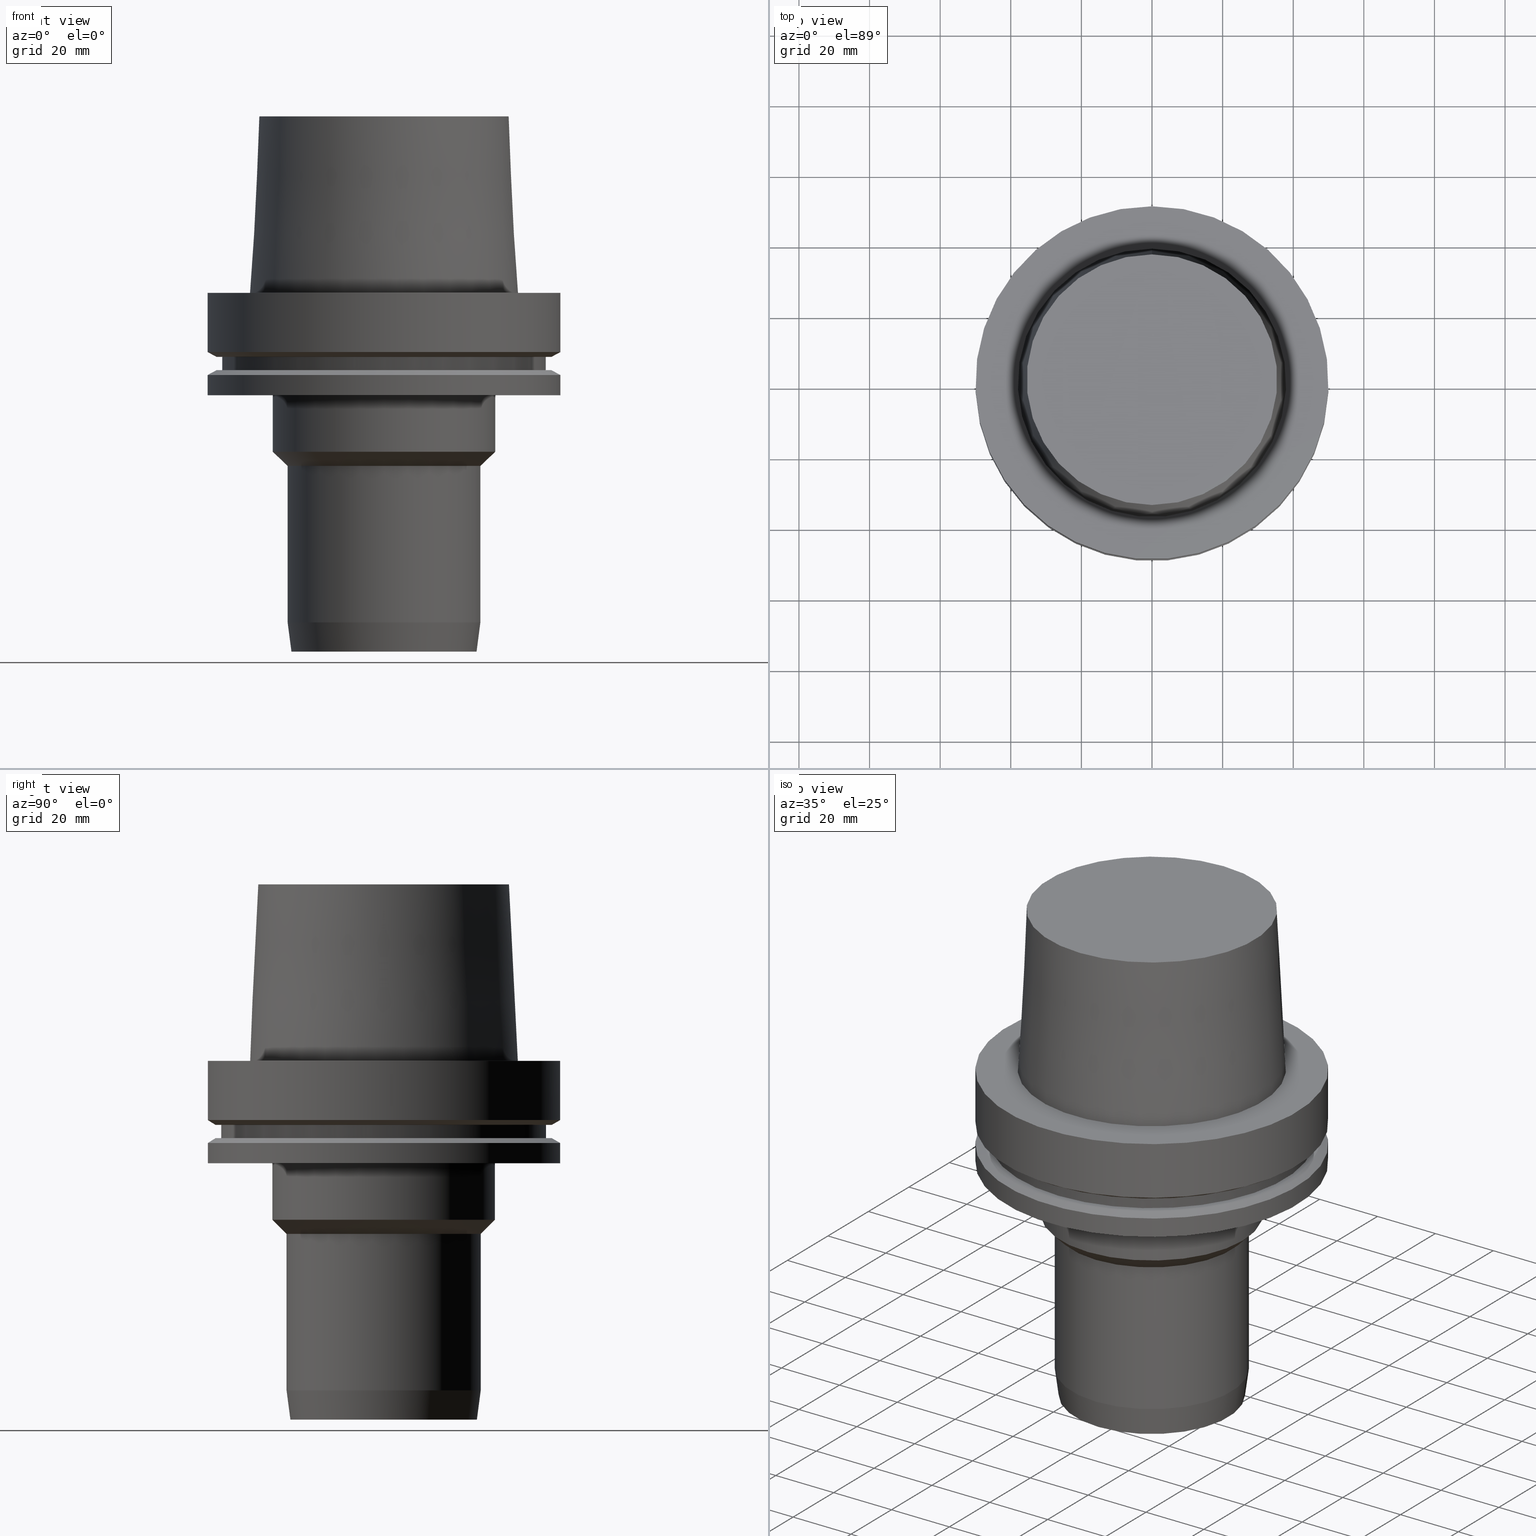
[diagram: canonical four-view strip — front | top / right | iso, engineering-drawing reading convention]
A machine part, canonical four-view strip (front | top / right | iso — engineering-drawing reading convention). The complete STEP part file that produces these views, byte-faithful:
ISO-10303-21;
HEADER;
FILE_DESCRIPTION((''),'1');
FILE_NAME('V:/90_\X2\53D65F9730C730FC30BF\X0\/00_\X2\6DE18DEF30C730FC30BF\X0\/ALL/HSK-BKUS\X2\52A05DE556F3\X0\_201801/HSK-A100-HDC/HSK-A100-HDC1.000-4.stp','2018-02-01T05:33:24',(''),(''),'Spatial Interop R21 SP3','Kubotek KeyCreator 2011 V10.0.2 (22737)',' ');
FILE_SCHEMA(('automotive_design'));
ENDSEC;
DATA;
#1=MECHANICAL_DESIGN_GEOMETRIC_PRESENTATION_REPRESENTATION(' ',(#10,#11,#12,#13,#14,#15,#16,#17,#18,#19,#20,#21,#22,#23,#24,#25,#26,#27,#28,#29,#30,#31,#32,#33,#34,#35,#36,#37,#38,#39,#40,#41),#6);
#2=PRODUCT_DEFINITION_CONTEXT('',#42,'design');
#3=APPLICATION_PROTOCOL_DEFINITION('INTERNATIONAL STANDARD','automotive_design',1994,#42);
#4=PRODUCT_CATEGORY_RELATIONSHIP('NONE','NONE',#43,#44);
#5=SHAPE_DEFINITION_REPRESENTATION(#45,#46);
#6= (GEOMETRIC_REPRESENTATION_CONTEXT(3)GLOBAL_UNCERTAINTY_ASSIGNED_CONTEXT((#49))GLOBAL_UNIT_ASSIGNED_CONTEXT((#51,#52,#53))REPRESENTATION_CONTEXT('NONE','WORKSPACE'));
#10=STYLED_ITEM('',(#55,#56),#57);
#11=STYLED_ITEM('',(#58),#59);
#12=STYLED_ITEM('',(#60,#61),#62);
#13=STYLED_ITEM('',(#63),#64);
#14=STYLED_ITEM('',(#65,#66),#67);
#15=STYLED_ITEM('',(#68,#69),#70);
#16=STYLED_ITEM('',(#71,#72),#73);
#17=STYLED_ITEM('',(#74),#75);
#18=STYLED_ITEM('',(#76,#77),#78);
#19=STYLED_ITEM('',(#79,#80),#81);
#20=STYLED_ITEM('',(#82),#83);
#21=STYLED_ITEM('',(#84),#85);
#22=STYLED_ITEM('',(#86,#87),#88);
#23=STYLED_ITEM('',(#89),#90);
#24=STYLED_ITEM('',(#91,#92),#93);
#25=STYLED_ITEM('',(#94),#95);
#26=STYLED_ITEM('',(#96),#97);
#27=STYLED_ITEM('',(#98,#99),#100);
#28=STYLED_ITEM('',(#101),#102);
#29=STYLED_ITEM('',(#103,#104),#105);
#30=STYLED_ITEM('',(#106,#107),#108);
#31=STYLED_ITEM('',(#109),#110);
#32=STYLED_ITEM('',(#111,#112),#113);
#33=STYLED_ITEM('',(#114,#115),#116);
#34=STYLED_ITEM('',(#117),#118);
#35=STYLED_ITEM('',(#119,#120),#121);
#36=STYLED_ITEM('',(#122),#123);
#37=STYLED_ITEM('',(#124,#125),#126);
#38=STYLED_ITEM('',(#127),#128);
#39=STYLED_ITEM('',(#129),#130);
#40=STYLED_ITEM('',(#131),#132);
#41=STYLED_ITEM('',(#133,#134),#135);
#42=APPLICATION_CONTEXT(' ');
#43=PRODUCT_CATEGORY('part','NONE');
#44=PRODUCT_RELATED_PRODUCT_CATEGORY('detail',' ',(#136));
#45=PRODUCT_DEFINITION_SHAPE('NONE','NONE',#137);
#46=ADVANCED_BREP_SHAPE_REPRESENTATION('Unnamed[1]',(#135,#138),#6);
#49=UNCERTAINTY_MEASURE_WITH_UNIT(LENGTH_MEASURE(1.0E-006),#51,'','');
#51= (CONVERSION_BASED_UNIT('MILLIMETRE',#141)LENGTH_UNIT()NAMED_UNIT(#144));
#52= (NAMED_UNIT(#146)PLANE_ANGLE_UNIT()SI_UNIT($,.RADIAN.));
#53= (NAMED_UNIT(#146)SOLID_ANGLE_UNIT()SI_UNIT($,.STERADIAN.));
#55=PRESENTATION_STYLE_ASSIGNMENT((#152));
#56=PRESENTATION_STYLE_ASSIGNMENT((#153));
#57=ADVANCED_FACE('Unnamed[1]',(#154,#155),#156,.T.);
#58=PRESENTATION_STYLE_ASSIGNMENT((#157));
#59=EDGE_CURVE('Unnamed[1]',#158,#158,#159,.T.);
#60=PRESENTATION_STYLE_ASSIGNMENT((#160));
#61=PRESENTATION_STYLE_ASSIGNMENT((#161));
#62=ADVANCED_FACE('Unnamed[1]',(#162),#163,.T.);
#63=PRESENTATION_STYLE_ASSIGNMENT((#164));
#64=EDGE_CURVE('Unnamed[1]',#165,#165,#166,.T.);
#65=PRESENTATION_STYLE_ASSIGNMENT((#167));
#66=PRESENTATION_STYLE_ASSIGNMENT((#168));
#67=ADVANCED_FACE('Unnamed[1]',(#169,#170),#171,.T.);
#68=PRESENTATION_STYLE_ASSIGNMENT((#172));
#69=PRESENTATION_STYLE_ASSIGNMENT((#173));
#70=ADVANCED_FACE('Unnamed[1]',(#174),#175,.T.);
#71=PRESENTATION_STYLE_ASSIGNMENT((#176));
#72=PRESENTATION_STYLE_ASSIGNMENT((#177));
#73=ADVANCED_FACE('Unnamed[1]',(#178,#179),#180,.T.);
#74=PRESENTATION_STYLE_ASSIGNMENT((#181));
#75=EDGE_CURVE('Unnamed[1]',#182,#182,#183,.T.);
#76=PRESENTATION_STYLE_ASSIGNMENT((#184));
#77=PRESENTATION_STYLE_ASSIGNMENT((#185));
#78=ADVANCED_FACE('Unnamed[1]',(#186,#187),#188,.T.);
#79=PRESENTATION_STYLE_ASSIGNMENT((#189));
#80=PRESENTATION_STYLE_ASSIGNMENT((#190));
#81=ADVANCED_FACE('Unnamed[1]',(#191,#192),#193,.T.);
#82=PRESENTATION_STYLE_ASSIGNMENT((#194));
#83=EDGE_CURVE('Unnamed[1]',#195,#195,#196,.T.);
#84=PRESENTATION_STYLE_ASSIGNMENT((#197));
#85=EDGE_CURVE('Unnamed[1]',#198,#198,#199,.T.);
#86=PRESENTATION_STYLE_ASSIGNMENT((#200));
#87=PRESENTATION_STYLE_ASSIGNMENT((#201));
#88=ADVANCED_FACE('Unnamed[1]',(#202,#203),#204,.T.);
#89=PRESENTATION_STYLE_ASSIGNMENT((#205));
#90=EDGE_CURVE('Unnamed[1]',#206,#206,#207,.T.);
#91=PRESENTATION_STYLE_ASSIGNMENT((#208));
#92=PRESENTATION_STYLE_ASSIGNMENT((#209));
#93=ADVANCED_FACE('Unnamed[1]',(#210,#211),#212,.T.);
#94=PRESENTATION_STYLE_ASSIGNMENT((#213));
#95=EDGE_CURVE('Unnamed[1]',#214,#214,#215,.T.);
#96=PRESENTATION_STYLE_ASSIGNMENT((#216));
#97=EDGE_CURVE('Unnamed[1]',#217,#217,#218,.T.);
#98=PRESENTATION_STYLE_ASSIGNMENT((#219));
#99=PRESENTATION_STYLE_ASSIGNMENT((#220));
#100=ADVANCED_FACE('Unnamed[1]',(#221,#222),#223,.T.);
#101=PRESENTATION_STYLE_ASSIGNMENT((#224));
#102=EDGE_CURVE('Unnamed[1]',#225,#225,#226,.T.);
#103=PRESENTATION_STYLE_ASSIGNMENT((#227));
#104=PRESENTATION_STYLE_ASSIGNMENT((#228));
#105=ADVANCED_FACE('Unnamed[1]',(#229,#230),#231,.T.);
#106=PRESENTATION_STYLE_ASSIGNMENT((#232));
#107=PRESENTATION_STYLE_ASSIGNMENT((#233));
#108=ADVANCED_FACE('Unnamed[1]',(#234,#235),#236,.T.);
#109=PRESENTATION_STYLE_ASSIGNMENT((#237));
#110=EDGE_CURVE('Unnamed[1]',#238,#238,#239,.T.);
#111=PRESENTATION_STYLE_ASSIGNMENT((#240));
#112=PRESENTATION_STYLE_ASSIGNMENT((#241));
#113=ADVANCED_FACE('Unnamed[1]',(#242,#243),#244,.T.);
#114=PRESENTATION_STYLE_ASSIGNMENT((#245));
#115=PRESENTATION_STYLE_ASSIGNMENT((#246));
#116=ADVANCED_FACE('Unnamed[1]',(#247,#248),#249,.T.);
#117=PRESENTATION_STYLE_ASSIGNMENT((#250));
#118=EDGE_CURVE('Unnamed[1]',#251,#251,#252,.T.);
#119=PRESENTATION_STYLE_ASSIGNMENT((#253));
#120=PRESENTATION_STYLE_ASSIGNMENT((#254));
#121=ADVANCED_FACE('Unnamed[1]',(#255,#256),#257,.T.);
#122=PRESENTATION_STYLE_ASSIGNMENT((#258));
#123=EDGE_CURVE('Unnamed[1]',#259,#259,#260,.T.);
#124=PRESENTATION_STYLE_ASSIGNMENT((#261));
#125=PRESENTATION_STYLE_ASSIGNMENT((#262));
#126=ADVANCED_FACE('Unnamed[1]',(#263,#264),#265,.T.);
#127=PRESENTATION_STYLE_ASSIGNMENT((#266));
#128=EDGE_CURVE('Unnamed[1]',#267,#267,#268,.T.);
#129=PRESENTATION_STYLE_ASSIGNMENT((#269));
#130=EDGE_CURVE('Unnamed[1]',#270,#270,#271,.T.);
#131=PRESENTATION_STYLE_ASSIGNMENT((#272));
#132=EDGE_CURVE('Unnamed[1]',#273,#273,#274,.T.);
#133=PRESENTATION_STYLE_ASSIGNMENT((#275));
#134=PRESENTATION_STYLE_ASSIGNMENT((#276));
#135=MANIFOLD_SOLID_BREP('Unnamed[1]',#277);
#136=PRODUCT('Unnamed[1]','Unnamed[1]','PART-Unnamed[1]-DESC',(#278));
#137=PRODUCT_DEFINITION('NONE','NONE',#279,#2);
#138=AXIS2_PLACEMENT_3D('',#280,#281,#282);
#141=LENGTH_MEASURE_WITH_UNIT(LENGTH_MEASURE(1.0),#283);
#144=DIMENSIONAL_EXPONENTS(1.0,0.0,0.0,0.0,0.0,0.0,0.0);
#146=DIMENSIONAL_EXPONENTS(0.0,0.0,0.0,0.0,0.0,0.0,0.0);
#152=SURFACE_STYLE_USAGE(.BOTH.,#284);
#153=CURVE_STYLE('',#285,POSITIVE_LENGTH_MEASURE(1000.0),#286);
#154=FACE_BOUND('',#287,.T.);
#155=FACE_BOUND('',#288,.T.);
#156=CONICAL_SURFACE('',#289,26.9542845478111,0.130899693899458);
#157=CURVE_STYLE('',#290,POSITIVE_LENGTH_MEASURE(1000.0),#291);
#158=VERTEX_POINT('',#292);
#159=CIRCLE('',#293,47.62259526);
#160=SURFACE_STYLE_USAGE(.BOTH.,#294);
#161=CURVE_STYLE('',#295,POSITIVE_LENGTH_MEASURE(1000.0),#296);
#162=FACE_OUTER_BOUND('',#297,.T.);
#163=PLANE('',#298);
#164=CURVE_STYLE('',#299,POSITIVE_LENGTH_MEASURE(1000.0),#300);
#165=VERTEX_POINT('',#301);
#166=CIRCLE('',#302,31.5000000000006);
#167=SURFACE_STYLE_USAGE(.BOTH.,#303);
#168=CURVE_STYLE('',#304,POSITIVE_LENGTH_MEASURE(1000.0),#305);
#169=FACE_BOUND('',#306,.T.);
#170=FACE_OUTER_BOUND('',#307,.T.);
#171=PLANE('',#308);
#172=SURFACE_STYLE_USAGE(.BOTH.,#309);
#173=CURVE_STYLE('',#310,POSITIVE_LENGTH_MEASURE(1000.0),#311);
#174=FACE_OUTER_BOUND('',#312,.T.);
#175=PLANE('',#313);
#176=SURFACE_STYLE_USAGE(.BOTH.,#314);
#177=CURVE_STYLE('',#315,POSITIVE_LENGTH_MEASURE(1000.0),#316);
#178=FACE_BOUND('',#317,.T.);
#179=FACE_BOUND('',#318,.T.);
#180=CONICAL_SURFACE('',#319,48.81129763,1.04719755328238);
#181=CURVE_STYLE('',#320,POSITIVE_LENGTH_MEASURE(1000.0),#321);
#182=VERTEX_POINT('',#322);
#183=CIRCLE('',#323,46.0);
#184=SURFACE_STYLE_USAGE(.BOTH.,#324);
#185=CURVE_STYLE('',#325,POSITIVE_LENGTH_MEASURE(1000.0),#326);
#186=FACE_BOUND('',#327,.T.);
#187=FACE_OUTER_BOUND('',#328,.T.);
#188=PLANE('',#329);
#189=SURFACE_STYLE_USAGE(.BOTH.,#330);
#190=CURVE_STYLE('',#331,POSITIVE_LENGTH_MEASURE(1000.0),#332);
#191=FACE_BOUND('',#333,.T.);
#192=FACE_BOUND('',#334,.T.);
#193=CYLINDRICAL_SURFACE('',#335,31.5000000000003);
#194=CURVE_STYLE('',#336,POSITIVE_LENGTH_MEASURE(1000.0),#337);
#195=VERTEX_POINT('',#338);
#196=CIRCLE('',#339,27.5000000000022);
#197=CURVE_STYLE('',#340,POSITIVE_LENGTH_MEASURE(1000.0),#341);
#198=VERTEX_POINT('',#342);
#199=CIRCLE('',#343,46.0);
#200=SURFACE_STYLE_USAGE(.BOTH.,#344);
#201=CURVE_STYLE('',#345,POSITIVE_LENGTH_MEASURE(1000.0),#346);
#202=FACE_BOUND('',#347,.T.);
#203=FACE_BOUND('',#348,.T.);
#204=CYLINDRICAL_SURFACE('',#349,27.5000000000019);
#205=CURVE_STYLE('',#350,POSITIVE_LENGTH_MEASURE(1000.0),#351);
#206=VERTEX_POINT('',#352);
#207=CIRCLE('',#353,37.9999999999349);
#208=SURFACE_STYLE_USAGE(.BOTH.,#354);
#209=CURVE_STYLE('',#355,POSITIVE_LENGTH_MEASURE(1000.0),#356);
#210=FACE_OUTER_BOUND('',#357,.T.);
#211=FACE_BOUND('',#358,.T.);
#212=PLANE('',#359);
#213=CURVE_STYLE('',#360,POSITIVE_LENGTH_MEASURE(1000.0),#361);
#214=VERTEX_POINT('',#362);
#215=CIRCLE('',#363,50.0);
#216=CURVE_STYLE('',#364,POSITIVE_LENGTH_MEASURE(1000.0),#365);
#217=VERTEX_POINT('',#366);
#218=CIRCLE('',#367,31.5);
#219=SURFACE_STYLE_USAGE(.BOTH.,#368);
#220=CURVE_STYLE('',#369,POSITIVE_LENGTH_MEASURE(1000.0),#370);
#221=FACE_BOUND('',#371,.T.);
#222=FACE_BOUND('',#372,.T.);
#223=CYLINDRICAL_SURFACE('',#373,50.0);
#224=CURVE_STYLE('',#374,POSITIVE_LENGTH_MEASURE(1000.0),#375);
#225=VERTEX_POINT('',#376);
#226=CIRCLE('',#377,27.5000000000016);
#227=SURFACE_STYLE_USAGE(.BOTH.,#378);
#228=CURVE_STYLE('',#379,POSITIVE_LENGTH_MEASURE(1000.0),#380);
#229=FACE_BOUND('',#381,.T.);
#230=FACE_BOUND('',#382,.T.);
#231=CONICAL_SURFACE('',#383,36.7500000007484,0.0499583956894843);
#232=SURFACE_STYLE_USAGE(.BOTH.,#384);
#233=CURVE_STYLE('',#385,POSITIVE_LENGTH_MEASURE(1000.0),#386);
#234=FACE_BOUND('',#387,.T.);
#235=FACE_BOUND('',#388,.T.);
#236=CONICAL_SURFACE('',#389,29.5000000000011,0.785398163397319);
#237=CURVE_STYLE('',#390,POSITIVE_LENGTH_MEASURE(1000.0),#391);
#238=VERTEX_POINT('',#392);
#239=CIRCLE('',#393,35.5000000015618);
#240=SURFACE_STYLE_USAGE(.BOTH.,#394);
#241=CURVE_STYLE('',#395,POSITIVE_LENGTH_MEASURE(1000.0),#396);
#242=FACE_BOUND('',#397,.T.);
#243=FACE_BOUND('',#398,.T.);
#244=CYLINDRICAL_SURFACE('',#399,50.0);
#245=SURFACE_STYLE_USAGE(.BOTH.,#400);
#246=CURVE_STYLE('',#401,POSITIVE_LENGTH_MEASURE(1000.0),#402);
#247=FACE_BOUND('',#403,.T.);
#248=FACE_BOUND('',#404,.T.);
#249=CONICAL_SURFACE('',#405,48.81129763,1.04719755328238);
#250=CURVE_STYLE('',#406,POSITIVE_LENGTH_MEASURE(1000.0),#407);
#251=VERTEX_POINT('',#408);
#252=CIRCLE('',#409,50.0);
#253=SURFACE_STYLE_USAGE(.BOTH.,#410);
#254=CURVE_STYLE('',#411,POSITIVE_LENGTH_MEASURE(1000.0),#412);
#255=FACE_OUTER_BOUND('',#413,.T.);
#256=FACE_BOUND('',#414,.T.);
#257=PLANE('',#415);
#258=CURVE_STYLE('',#416,POSITIVE_LENGTH_MEASURE(1000.0),#417);
#259=VERTEX_POINT('',#418);
#260=CIRCLE('',#419,50.0);
#261=SURFACE_STYLE_USAGE(.BOTH.,#420);
#262=CURVE_STYLE('',#421,POSITIVE_LENGTH_MEASURE(1000.0),#422);
#263=FACE_BOUND('',#423,.T.);
#264=FACE_BOUND('',#424,.T.);
#265=CYLINDRICAL_SURFACE('',#425,46.0);
#266=CURVE_STYLE('',#426,POSITIVE_LENGTH_MEASURE(1000.0),#427);
#267=VERTEX_POINT('',#428);
#268=CIRCLE('',#429,47.62259526);
#269=CURVE_STYLE('',#430,POSITIVE_LENGTH_MEASURE(1000.0),#431);
#270=VERTEX_POINT('',#432);
#271=CIRCLE('',#433,50.0);
#272=CURVE_STYLE('',#434,POSITIVE_LENGTH_MEASURE(1000.0),#435);
#273=VERTEX_POINT('',#436);
#274=CIRCLE('',#437,26.4085690956199);
#275=SURFACE_STYLE_USAGE(.BOTH.,#438);
#276=CURVE_STYLE('',#439,POSITIVE_LENGTH_MEASURE(1000.0),#440);
#277=CLOSED_SHELL('',(#62,#105,#93,#100,#116,#67,#126,#121,#73,#113,#78,#81,#108,#88,#57,#70));
#278=PRODUCT_CONTEXT('',#42,'mechanical');
#279=PRODUCT_DEFINITION_FORMATION_WITH_SPECIFIED_SOURCE(' ','NONE',#136,.NOT_KNOWN.);
#280=CARTESIAN_POINT('',(0.0,0.0,0.0));
#281=DIRECTION('',(0.0,0.0,1.0));
#282=DIRECTION('',(1.0,0.0,0.0));
#283= (NAMED_UNIT(#144)LENGTH_UNIT()SI_UNIT(.MILLI.,.METRE.));
#284=SURFACE_SIDE_STYLE('',(#442));
#285=DRAUGHTING_PRE_DEFINED_CURVE_FONT('continuous');
#286=COLOUR_RGB('',0.0,1.0,0.0);
#287=EDGE_LOOP('',(#443));
#288=EDGE_LOOP('',(#444));
#289=AXIS2_PLACEMENT_3D('',#445,#446,#447);
#290=DRAUGHTING_PRE_DEFINED_CURVE_FONT('continuous');
#291=COLOUR_RGB('',0.0,1.0,0.0);
#292=CARTESIAN_POINT('',(1.33945743656742E-015,47.62259526,-21.875));
#293=AXIS2_PLACEMENT_3D('',#448,#449,#450);
#294=SURFACE_SIDE_STYLE('',(#451));
#295=DRAUGHTING_PRE_DEFINED_CURVE_FONT('continuous');
#296=COLOUR_RGB('',0.0,1.0,0.0);
#297=EDGE_LOOP('',(#452));
#298=AXIS2_PLACEMENT_3D('',#453,#454,#455);
#299=DRAUGHTING_PRE_DEFINED_CURVE_FONT('continuous');
#300=COLOUR_RGB('',0.0,1.0,0.0);
#301=CARTESIAN_POINT('',(2.75545529808154E-015,31.5000000000006,-45.0));
#302=AXIS2_PLACEMENT_3D('',#456,#457,#458);
#303=SURFACE_SIDE_STYLE('',(#459));
#304=DRAUGHTING_PRE_DEFINED_CURVE_FONT('continuous');
#305=COLOUR_RGB('',0.0,1.0,0.0);
#306=EDGE_LOOP('',(#460));
#307=EDGE_LOOP('',(#461));
#308=AXIS2_PLACEMENT_3D('',#462,#463,#464);
#309=SURFACE_SIDE_STYLE('',(#465));
#310=DRAUGHTING_PRE_DEFINED_CURVE_FONT('continuous');
#311=COLOUR_RGB('',0.0,1.0,0.0);
#312=EDGE_LOOP('',(#466));
#313=AXIS2_PLACEMENT_3D('',#467,#468,#469);
#314=SURFACE_SIDE_STYLE('',(#470));
#315=DRAUGHTING_PRE_DEFINED_CURVE_FONT('continuous');
#316=COLOUR_RGB('',0.0,1.0,0.0);
#317=EDGE_LOOP('',(#471));
#318=EDGE_LOOP('',(#472));
#319=AXIS2_PLACEMENT_3D('',#473,#474,#475);
#320=DRAUGHTING_PRE_DEFINED_CURVE_FONT('continuous');
#321=COLOUR_RGB('',0.0,1.0,0.0);
#322=CARTESIAN_POINT('',(1.10983616172729E-015,46.0,-18.125));
#323=AXIS2_PLACEMENT_3D('',#476,#477,#478);
#324=SURFACE_SIDE_STYLE('',(#479));
#325=DRAUGHTING_PRE_DEFINED_CURVE_FONT('continuous');
#326=COLOUR_RGB('',0.0,1.0,0.0);
#327=EDGE_LOOP('',(#480));
#328=EDGE_LOOP('',(#481));
#329=AXIS2_PLACEMENT_3D('',#482,#483,#484);
#330=SURFACE_SIDE_STYLE('',(#485));
#331=DRAUGHTING_PRE_DEFINED_CURVE_FONT('continuous');
#332=COLOUR_RGB('',0.0,1.0,0.0);
#333=EDGE_LOOP('',(#486));
#334=EDGE_LOOP('',(#487));
#335=AXIS2_PLACEMENT_3D('',#488,#489,#490);
#336=DRAUGHTING_PRE_DEFINED_CURVE_FONT('continuous');
#337=COLOUR_RGB('',0.0,1.0,0.0);
#338=CARTESIAN_POINT('',(5.7135748978548E-015,27.5000000000022,-93.3097592192755));
#339=AXIS2_PLACEMENT_3D('',#491,#492,#493);
#340=DRAUGHTING_PRE_DEFINED_CURVE_FONT('continuous');
#341=COLOUR_RGB('',0.0,1.0,0.0);
#342=CARTESIAN_POINT('',(1.33945743656742E-015,46.0,-21.875));
#343=AXIS2_PLACEMENT_3D('',#494,#495,#496);
#344=SURFACE_SIDE_STYLE('',(#497));
#345=DRAUGHTING_PRE_DEFINED_CURVE_FONT('continuous');
#346=COLOUR_RGB('',0.0,1.0,0.0);
#347=EDGE_LOOP('',(#498));
#348=EDGE_LOOP('',(#499));
#349=AXIS2_PLACEMENT_3D('',#500,#501,#502);
#350=DRAUGHTING_PRE_DEFINED_CURVE_FONT('continuous');
#351=COLOUR_RGB('',0.0,1.0,0.0);
#352=CARTESIAN_POINT('',(-3.3636548776863E-032,37.9999999999349,-2.44634216324803E-015));
#353=AXIS2_PLACEMENT_3D('',#503,#504,#505);
#354=SURFACE_SIDE_STYLE('',(#506));
#355=DRAUGHTING_PRE_DEFINED_CURVE_FONT('continuous');
#356=COLOUR_RGB('',0.0,1.0,0.0);
#357=EDGE_LOOP('',(#507));
#358=EDGE_LOOP('',(#508));
#359=AXIS2_PLACEMENT_3D('',#509,#510,#511);
#360=DRAUGHTING_PRE_DEFINED_CURVE_FONT('continuous');
#361=COLOUR_RGB('',0.0,1.0,0.0);
#362=CARTESIAN_POINT('',(1.77573785876366E-015,50.0,-29.0));
#363=AXIS2_PLACEMENT_3D('',#512,#513,#514);
#364=DRAUGHTING_PRE_DEFINED_CURVE_FONT('continuous');
#365=COLOUR_RGB('',0.0,1.0,0.0);
#366=CARTESIAN_POINT('',(1.77573785876366E-015,31.5,-29.0));
#367=AXIS2_PLACEMENT_3D('',#515,#516,#517);
#368=SURFACE_SIDE_STYLE('',(#518));
#369=DRAUGHTING_PRE_DEFINED_CURVE_FONT('continuous');
#370=COLOUR_RGB('',0.0,1.0,0.0);
#371=EDGE_LOOP('',(#519));
#372=EDGE_LOOP('',(#520));
#373=AXIS2_PLACEMENT_3D('',#521,#522,#523);
#374=DRAUGHTING_PRE_DEFINED_CURVE_FONT('continuous');
#375=COLOUR_RGB('',0.0,1.0,0.0);
#376=CARTESIAN_POINT('',(3.00038465791101E-015,27.5000000000017,-49.0));
#377=AXIS2_PLACEMENT_3D('',#524,#525,#526);
#378=SURFACE_SIDE_STYLE('',(#527));
#379=DRAUGHTING_PRE_DEFINED_CURVE_FONT('continuous');
#380=COLOUR_RGB('',0.0,1.0,0.0);
#381=EDGE_LOOP('',(#528));
#382=EDGE_LOOP('',(#529));
#383=AXIS2_PLACEMENT_3D('',#530,#531,#532);
#384=SURFACE_SIDE_STYLE('',(#533));
#385=DRAUGHTING_PRE_DEFINED_CURVE_FONT('continuous');
#386=COLOUR_RGB('',0.0,1.0,0.0);
#387=EDGE_LOOP('',(#534));
#388=EDGE_LOOP('',(#535));
#389=AXIS2_PLACEMENT_3D('',#536,#537,#538);
#390=DRAUGHTING_PRE_DEFINED_CURVE_FONT('continuous');
#391=COLOUR_RGB('',0.0,1.0,0.0);
#392=CARTESIAN_POINT('',(-3.06161699786838E-015,35.5000000015618,50.0));
#393=AXIS2_PLACEMENT_3D('',#539,#540,#541);
#394=SURFACE_SIDE_STYLE('',(#542));
#395=DRAUGHTING_PRE_DEFINED_CURVE_FONT('continuous');
#396=COLOUR_RGB('',0.0,1.0,0.0);
#397=EDGE_LOOP('',(#543));
#398=EDGE_LOOP('',(#544));
#399=AXIS2_PLACEMENT_3D('',#545,#546,#547);
#400=SURFACE_SIDE_STYLE('',(#548));
#401=DRAUGHTING_PRE_DEFINED_CURVE_FONT('continuous');
#402=COLOUR_RGB('',0.0,1.0,0.0);
#403=EDGE_LOOP('',(#549));
#404=EDGE_LOOP('',(#550));
#405=AXIS2_PLACEMENT_3D('',#551,#552,#553);
#406=DRAUGHTING_PRE_DEFINED_CURVE_FONT('continuous');
#407=COLOUR_RGB('',0.0,1.0,0.0);
#408=CARTESIAN_POINT('',(-1.81547968506605E-031,50.0,-9.76766004263236E-016));
#409=AXIS2_PLACEMENT_3D('',#554,#555,#556);
#410=SURFACE_SIDE_STYLE('',(#557));
#411=DRAUGHTING_PRE_DEFINED_CURVE_FONT('continuous');
#412=COLOUR_RGB('',0.0,1.0,0.0);
#413=EDGE_LOOP('',(#558));
#414=EDGE_LOOP('',(#559));
#415=AXIS2_PLACEMENT_3D('',#560,#561,#562);
#416=DRAUGHTING_PRE_DEFINED_CURVE_FONT('continuous');
#417=COLOUR_RGB('',0.0,1.0,0.0);
#418=CARTESIAN_POINT('',(1.0257889421431E-015,50.0,-16.75240474));
#419=AXIS2_PLACEMENT_3D('',#563,#564,#565);
#420=SURFACE_SIDE_STYLE('',(#566));
#421=DRAUGHTING_PRE_DEFINED_CURVE_FONT('continuous');
#422=COLOUR_RGB('',0.0,1.0,0.0);
#423=EDGE_LOOP('',(#567));
#424=EDGE_LOOP('',(#568));
#425=AXIS2_PLACEMENT_3D('',#569,#570,#571);
#426=DRAUGHTING_PRE_DEFINED_CURVE_FONT('continuous');
#427=COLOUR_RGB('',0.0,1.0,0.0);
#428=CARTESIAN_POINT('',(1.10983616172729E-015,47.62259526,-18.125));
#429=AXIS2_PLACEMENT_3D('',#572,#573,#574);
#430=DRAUGHTING_PRE_DEFINED_CURVE_FONT('continuous');
#431=COLOUR_RGB('',0.0,1.0,0.0);
#432=CARTESIAN_POINT('',(1.42350465615161E-015,50.0,-23.24759526));
#433=AXIS2_PLACEMENT_3D('',#575,#576,#577);
#434=DRAUGHTING_PRE_DEFINED_CURVE_FONT('continuous');
#435=COLOUR_RGB('',0.0,1.0,0.0);
#436=CARTESIAN_POINT('',(6.22120573966855E-015,26.40856909562,-101.6));
#437=AXIS2_PLACEMENT_3D('',#578,#579,#580);
#438=SURFACE_SIDE_STYLE('',(#581));
#439=DRAUGHTING_PRE_DEFINED_CURVE_FONT('continuous');
#440=COLOUR_RGB('',0.0,1.0,0.0);
#442=SURFACE_STYLE_FILL_AREA(#582);
#443=ORIENTED_EDGE('',*,*,#132,.F.);
#444=ORIENTED_EDGE('',*,*,#83,.T.);
#445=CARTESIAN_POINT('',(5.96739031876167E-015,1.19347806375233E-014,-97.4548796096377));
#446=DIRECTION('',(-6.12323399573677E-017,-1.22464679914752E-016,1.0));
#447=DIRECTION('',(-1.23259516440795E-032,1.0,1.22464679914752E-016));
#448=CARTESIAN_POINT('',(1.33945743656742E-015,2.67891487313484E-015,-21.875));
#449=DIRECTION('',(6.12323399573676E-017,1.22464679914752E-016,-1.0));
#450=DIRECTION('',(-1.23259516440801E-032,1.0,1.22464679914752E-016));
#451=SURFACE_STYLE_FILL_AREA(#583);
#452=ORIENTED_EDGE('',*,*,#110,.F.);
#453=CARTESIAN_POINT('',(-3.06161699786838E-015,17.7500000007809,50.0));
#454=DIRECTION('',(-6.12323399573677E-017,-1.22464679914735E-016,1.0));
#455=DIRECTION('',(1.23259516440783E-032,-1.0,-1.22464679914735E-016));
#456=CARTESIAN_POINT('',(2.75545529808154E-015,5.51091059616309E-015,-45.0));
#457=DIRECTION('',(6.12323399573677E-017,1.22464679914716E-016,-1.0));
#458=DIRECTION('',(-1.23259516440781E-032,1.0,1.22464679914716E-016));
#459=SURFACE_STYLE_FILL_AREA(#584);
#460=ORIENTED_EDGE('',*,*,#75,.F.);
#461=ORIENTED_EDGE('',*,*,#128,.T.);
#462=CARTESIAN_POINT('',(1.10983616172729E-015,46.81129763,-18.125));
#463=DIRECTION('',(6.12323399573677E-017,1.22464679914735E-016,-1.0));
#464=DIRECTION('',(-1.23259516440783E-032,1.0,1.22464679914735E-016));
#465=SURFACE_STYLE_FILL_AREA(#585);
#466=ORIENTED_EDGE('',*,*,#132,.T.);
#467=CARTESIAN_POINT('',(6.22120573966855E-015,13.20428454781,-101.6));
#468=DIRECTION('',(6.12323399573677E-017,1.22464679914735E-016,-1.0));
#469=DIRECTION('',(-1.23259516440783E-032,1.0,1.22464679914735E-016));
#470=SURFACE_STYLE_FILL_AREA(#586);
#471=ORIENTED_EDGE('',*,*,#130,.F.);
#472=ORIENTED_EDGE('',*,*,#59,.T.);
#473=CARTESIAN_POINT('',(1.38148104635951E-015,2.76296209271903E-015,-22.56129763));
#474=DIRECTION('',(6.12323399573677E-017,1.22464679914711E-016,-1.0));
#475=DIRECTION('',(-1.23259516440792E-032,1.0,1.22464679914711E-016));
#476=CARTESIAN_POINT('',(1.10983616172729E-015,2.21967232345458E-015,-18.125));
#477=DIRECTION('',(6.12323399573677E-017,1.22464679914716E-016,-1.0));
#478=DIRECTION('',(-1.23259516440783E-032,1.0,1.22464679914716E-016));
#479=SURFACE_STYLE_FILL_AREA(#587);
#480=ORIENTED_EDGE('',*,*,#97,.F.);
#481=ORIENTED_EDGE('',*,*,#95,.T.);
#482=CARTESIAN_POINT('',(1.77573785876366E-015,40.75,-29.0));
#483=DIRECTION('',(6.12323399573677E-017,1.22464679914735E-016,-1.0));
#484=DIRECTION('',(-1.23259516440783E-032,1.0,1.22464679914735E-016));
#485=SURFACE_STYLE_FILL_AREA(#588);
#486=ORIENTED_EDGE('',*,*,#64,.F.);
#487=ORIENTED_EDGE('',*,*,#97,.T.);
#488=CARTESIAN_POINT('',(2.2655965784226E-015,4.53119315684521E-015,-37.0));
#489=DIRECTION('',(6.12323399573677E-017,1.22464679914718E-016,-1.0));
#490=DIRECTION('',(-1.23259516440782E-032,1.0,1.22464679914718E-016));
#491=CARTESIAN_POINT('',(5.7135748978548E-015,1.14271497957096E-014,-93.3097592192755));
#492=DIRECTION('',(6.12323399573677E-017,1.22464679914732E-016,-1.0));
#493=DIRECTION('',(-1.23259516440773E-032,1.0,1.22464679914732E-016));
#494=CARTESIAN_POINT('',(1.33945743656742E-015,2.67891487313484E-015,-21.875));
#495=DIRECTION('',(6.12323399573677E-017,1.22464679914716E-016,-1.0));
#496=DIRECTION('',(-1.23259516440783E-032,1.0,1.22464679914716E-016));
#497=SURFACE_STYLE_FILL_AREA(#589);
#498=ORIENTED_EDGE('',*,*,#83,.F.);
#499=ORIENTED_EDGE('',*,*,#102,.T.);
#500=CARTESIAN_POINT('',(4.35697977788291E-015,8.71395955576581E-015,-71.1548796096378));
#501=DIRECTION('',(6.12323399573677E-017,1.22464679914733E-016,-1.0));
#502=DIRECTION('',(-1.23259516440774E-032,1.0,1.22464679914733E-016));
#503=CARTESIAN_POINT('',(0.0,0.0,0.0));
#504=DIRECTION('',(6.12323399573677E-017,1.22464679914704E-016,-1.0));
#505=DIRECTION('',(-1.23259516440805E-032,1.0,1.22464679914704E-016));
#506=SURFACE_STYLE_FILL_AREA(#590);
#507=ORIENTED_EDGE('',*,*,#118,.F.);
#508=ORIENTED_EDGE('',*,*,#90,.T.);
#509=CARTESIAN_POINT('',(-1.07592258641734E-031,43.9999999999675,-1.71155408375563E-015));
#510=DIRECTION('',(-6.12323399573677E-017,-1.22464679914735E-016,1.0));
#511=DIRECTION('',(1.23259516440783E-032,-1.0,-1.22464679914735E-016));
#512=CARTESIAN_POINT('',(1.77573785876366E-015,3.55147571752733E-015,-29.0));
#513=DIRECTION('',(6.12323399573677E-017,1.22464679914736E-016,-1.0));
#514=DIRECTION('',(-1.23259516440783E-032,1.0,1.22464679914736E-016));
#515=CARTESIAN_POINT('',(1.77573785876366E-015,3.55147571752733E-015,-29.0));
#516=DIRECTION('',(6.12323399573677E-017,1.22464679914719E-016,-1.0));
#517=DIRECTION('',(-1.23259516440783E-032,1.0,1.22464679914719E-016));
#518=SURFACE_STYLE_FILL_AREA(#591);
#519=ORIENTED_EDGE('',*,*,#123,.F.);
#520=ORIENTED_EDGE('',*,*,#118,.T.);
#521=CARTESIAN_POINT('',(5.12894471071548E-016,1.0257889421431E-015,-8.37620236999999));
#522=DIRECTION('',(6.12323399573677E-017,1.22464679914736E-016,-1.0));
#523=DIRECTION('',(-1.23259516440783E-032,1.0,1.22464679914736E-016));
#524=CARTESIAN_POINT('',(3.00038465791101E-015,6.00076931582203E-015,-49.0));
#525=DIRECTION('',(6.12323399573677E-017,1.22464679914735E-016,-1.0));
#526=DIRECTION('',(-1.23259516440776E-032,1.0,1.22464679914735E-016));
#527=SURFACE_STYLE_FILL_AREA(#592);
#528=ORIENTED_EDGE('',*,*,#90,.F.);
#529=ORIENTED_EDGE('',*,*,#110,.T.);
#530=CARTESIAN_POINT('',(-1.53080849893419E-015,-3.06161699786838E-015,25.0));
#531=DIRECTION('',(6.12323399573676E-017,1.22464679914694E-016,-1.0));
#532=DIRECTION('',(-1.23259516440762E-032,1.0,1.22464679914694E-016));
#533=SURFACE_STYLE_FILL_AREA(#593);
#534=ORIENTED_EDGE('',*,*,#102,.F.);
#535=ORIENTED_EDGE('',*,*,#64,.T.);
#536=CARTESIAN_POINT('',(2.87791997799628E-015,5.75583995599256E-015,-47.0));
#537=DIRECTION('',(-6.12323399573677E-017,-1.22464679914752E-016,1.0));
#538=DIRECTION('',(-1.23259516440778E-032,1.0,1.22464679914752E-016));
#539=CARTESIAN_POINT('',(-3.06161699786838E-015,-6.12323399573676E-015,50.0));
#540=DIRECTION('',(6.12323399573677E-017,1.22464679914774E-016,-1.0));
#541=DIRECTION('',(-1.23259516440767E-032,1.0,1.22464679914774E-016));
#542=SURFACE_STYLE_FILL_AREA(#594);
#543=ORIENTED_EDGE('',*,*,#95,.F.);
#544=ORIENTED_EDGE('',*,*,#130,.T.);
#545=CARTESIAN_POINT('',(1.59962125745764E-015,3.19924251491527E-015,-26.12379763));
#546=DIRECTION('',(6.12323399573677E-017,1.22464679914736E-016,-1.0));
#547=DIRECTION('',(-1.23259516440783E-032,1.0,1.22464679914736E-016));
#548=SURFACE_STYLE_FILL_AREA(#595);
#549=ORIENTED_EDGE('',*,*,#128,.F.);
#550=ORIENTED_EDGE('',*,*,#123,.T.);
#551=CARTESIAN_POINT('',(1.06781255193519E-015,2.13562510387038E-015,-17.43870237));
#552=DIRECTION('',(-6.12323399573677E-017,-1.22464679914711E-016,1.0));
#553=DIRECTION('',(-1.23259516440792E-032,1.0,1.22464679914711E-016));
#554=CARTESIAN_POINT('',(0.0,0.0,0.0));
#555=DIRECTION('',(6.12323399573677E-017,1.22464679914736E-016,-1.0));
#556=DIRECTION('',(-1.23259516440783E-032,1.0,1.22464679914736E-016));
#557=SURFACE_STYLE_FILL_AREA(#596);
#558=ORIENTED_EDGE('',*,*,#59,.F.);
#559=ORIENTED_EDGE('',*,*,#85,.T.);
#560=CARTESIAN_POINT('',(1.33945743656742E-015,46.81129763,-21.875));
#561=DIRECTION('',(-6.12323399573677E-017,-1.22464679914735E-016,1.0));
#562=DIRECTION('',(1.23259516440783E-032,-1.0,-1.22464679914735E-016));
#563=CARTESIAN_POINT('',(1.0257889421431E-015,2.05157788428619E-015,-16.75240474));
#564=DIRECTION('',(6.12323399573677E-017,1.22464679914736E-016,-1.0));
#565=DIRECTION('',(-1.23259516440783E-032,1.0,1.22464679914736E-016));
#566=SURFACE_STYLE_FILL_AREA(#597);
#567=ORIENTED_EDGE('',*,*,#85,.F.);
#568=ORIENTED_EDGE('',*,*,#75,.T.);
#569=CARTESIAN_POINT('',(1.22464679914735E-015,2.44929359829471E-015,-20.0));
#570=DIRECTION('',(6.12323399573677E-017,1.22464679914716E-016,-1.0));
#571=DIRECTION('',(-1.23259516440783E-032,1.0,1.22464679914716E-016));
#572=CARTESIAN_POINT('',(1.10983616172729E-015,2.21967232345458E-015,-18.125));
#573=DIRECTION('',(6.12323399573676E-017,1.22464679914752E-016,-1.0));
#574=DIRECTION('',(-1.23259516440801E-032,1.0,1.22464679914752E-016));
#575=CARTESIAN_POINT('',(1.42350465615161E-015,2.84700931230322E-015,-23.24759526));
#576=DIRECTION('',(6.12323399573677E-017,1.22464679914736E-016,-1.0));
#577=DIRECTION('',(-1.23259516440783E-032,1.0,1.22464679914736E-016));
#578=CARTESIAN_POINT('',(6.22120573966855E-015,1.24424114793371E-014,-101.6));
#579=DIRECTION('',(6.12323399573677E-017,1.22464679914711E-016,-1.0));
#580=DIRECTION('',(-1.23259516440783E-032,1.0,1.22464679914711E-016));
#581=SURFACE_STYLE_FILL_AREA(#598);
#582=FILL_AREA_STYLE('',(#599));
#583=FILL_AREA_STYLE('',(#600));
#584=FILL_AREA_STYLE('',(#601));
#585=FILL_AREA_STYLE('',(#602));
#586=FILL_AREA_STYLE('',(#603));
#587=FILL_AREA_STYLE('',(#604));
#588=FILL_AREA_STYLE('',(#605));
#589=FILL_AREA_STYLE('',(#606));
#590=FILL_AREA_STYLE('',(#607));
#591=FILL_AREA_STYLE('',(#608));
#592=FILL_AREA_STYLE('',(#609));
#593=FILL_AREA_STYLE('',(#610));
#594=FILL_AREA_STYLE('',(#611));
#595=FILL_AREA_STYLE('',(#612));
#596=FILL_AREA_STYLE('',(#613));
#597=FILL_AREA_STYLE('',(#614));
#598=FILL_AREA_STYLE('',(#615));
#599=FILL_AREA_STYLE_COLOUR('',#616);
#600=FILL_AREA_STYLE_COLOUR('',#617);
#601=FILL_AREA_STYLE_COLOUR('',#618);
#602=FILL_AREA_STYLE_COLOUR('',#619);
#603=FILL_AREA_STYLE_COLOUR('',#620);
#604=FILL_AREA_STYLE_COLOUR('',#621);
#605=FILL_AREA_STYLE_COLOUR('',#622);
#606=FILL_AREA_STYLE_COLOUR('',#623);
#607=FILL_AREA_STYLE_COLOUR('',#624);
#608=FILL_AREA_STYLE_COLOUR('',#625);
#609=FILL_AREA_STYLE_COLOUR('',#626);
#610=FILL_AREA_STYLE_COLOUR('',#627);
#611=FILL_AREA_STYLE_COLOUR('',#628);
#612=FILL_AREA_STYLE_COLOUR('',#629);
#613=FILL_AREA_STYLE_COLOUR('',#630);
#614=FILL_AREA_STYLE_COLOUR('',#631);
#615=FILL_AREA_STYLE_COLOUR('',#632);
#616=COLOUR_RGB('',0.0,1.0,0.0);
#617=COLOUR_RGB('',0.0,1.0,0.0);
#618=COLOUR_RGB('',0.0,1.0,0.0);
#619=COLOUR_RGB('',0.0,1.0,0.0);
#620=COLOUR_RGB('',0.0,1.0,0.0);
#621=COLOUR_RGB('',0.0,1.0,0.0);
#622=COLOUR_RGB('',0.0,1.0,0.0);
#623=COLOUR_RGB('',0.0,1.0,0.0);
#624=COLOUR_RGB('',0.0,1.0,0.0);
#625=COLOUR_RGB('',0.0,1.0,0.0);
#626=COLOUR_RGB('',0.0,1.0,0.0);
#627=COLOUR_RGB('',0.0,1.0,0.0);
#628=COLOUR_RGB('',0.0,1.0,0.0);
#629=COLOUR_RGB('',0.0,1.0,0.0);
#630=COLOUR_RGB('',0.0,1.0,0.0);
#631=COLOUR_RGB('',0.0,1.0,0.0);
#632=COLOUR_RGB('',0.0,1.0,0.0);
ENDSEC;
END-ISO-10303-21;
